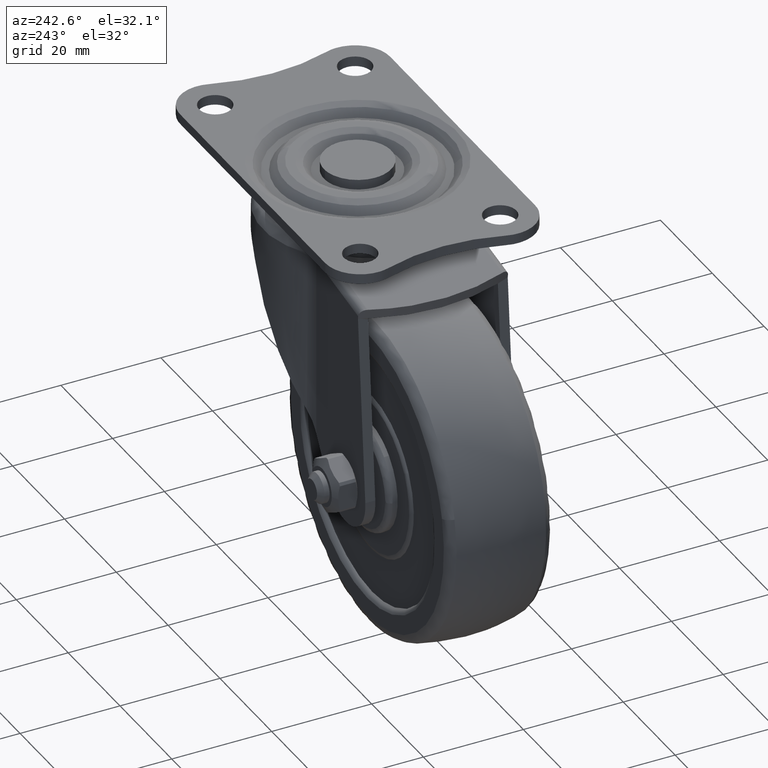
[diagram: clean part render]
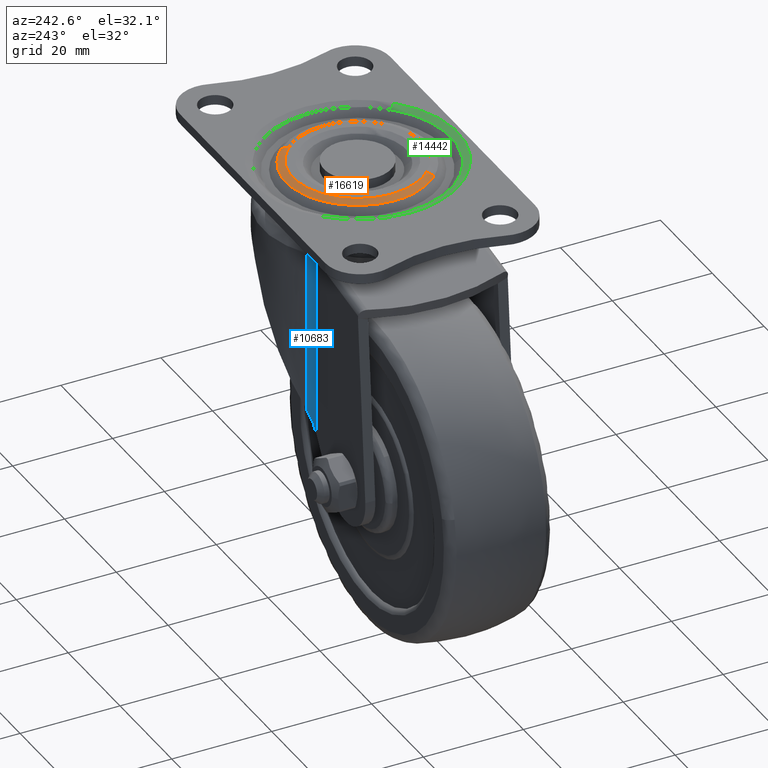
[diagram: same view with three faces highlighted in distinct colors, each labeled with its STEP entity id]
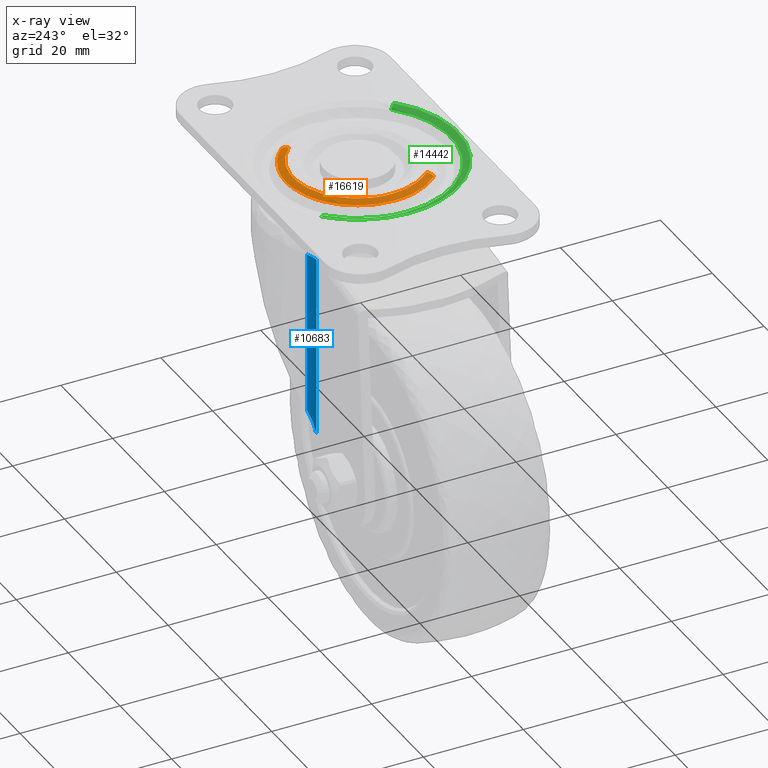
[diagram: x-ray of the same camera — body ghosted, the three highlighted faces saturated]
A machine part, auxiliary view with three faces highlighted in distinct colors.
The next image is the same camera in x-ray (body ghosted, the three faces saturated) — at least one of them is partly hidden behind the body in this view.
Their STEP definitions:

[orange] entity #16619 — the highlighted face is a freeform B-spline surface patch.
#15753=CARTESIAN_POINT('',(18.055046236144339,13.045010445499649,48.914217562826828));
#15754=VERTEX_POINT('',#15753);
#15755=CARTESIAN_POINT('',(34.326196349037403,9.944065653081688,48.914217563544227));
#15756=VERTEX_POINT('',#15755);
#15757=CARTESIAN_POINT('',(18.055046236144339,13.045010445499647,48.914217562826828));
#15758=CARTESIAN_POINT('',(20.887395647753301,14.335786437081877,48.914217562979701));
#15759=CARTESIAN_POINT('',(23.999999999430749,14.335786437007499,48.914217563126009));
#15760=CARTESIAN_POINT('',(30.096995360944430,14.335786436861811,48.914217563412606));
#15761=CARTESIAN_POINT('',(34.326196349037403,9.944065653081688,48.914217563544227));
#15769=(BOUNDED_CURVE()B_SPLINE_CURVE(2,(#15757,#15758,#15759,#15760,#15761),.UNSPECIFIED.,.F.,.U.)B_SPLINE_CURVE_WITH_KNOTS((3,2,3),(0.679570116088817,0.750000000000000,0.877844262562531),.UNSPECIFIED.)CURVE()GEOMETRIC_REPRESENTATION_ITEM()RATIONAL_B_SPLINE_CURVE((0.881463982739147,0.917486258402384,1.0,0.850221129724913,0.853629213191965))REPRESENTATION_ITEM(''));
#15770=EDGE_CURVE('',#15754,#15756,#15769,.T.);
#15835=CARTESIAN_POINT('',(9.664213562373099,1.421085E-014,48.914217562373203));
#15836=VERTEX_POINT('',#15835);
#15837=CARTESIAN_POINT('',(9.664213562373099,1.421085E-014,48.914217562373203));
#15838=CARTESIAN_POINT('',(9.664213562280754,9.221087690711356,48.914217562473105));
#15839=CARTESIAN_POINT('',(18.055046236144339,13.045010445499647,48.914217562826828));
#15847=(BOUNDED_CURVE()B_SPLINE_CURVE(2,(#15837,#15838,#15839),.UNSPECIFIED.,.F.,.U.)B_SPLINE_CURVE_WITH_KNOTS((3,3),(0.500000000000000,0.679570116088817),.UNSPECIFIED.)CURVE()GEOMETRIC_REPRESENTATION_ITEM()RATIONAL_B_SPLINE_CURVE((1.0,0.789620522784164,0.881463982739147))REPRESENTATION_ITEM(''));
#15848=EDGE_CURVE('',#15836,#15754,#15847,.T.);
#15854=CARTESIAN_POINT('',(13.673803650962601,-9.944065653081660,48.914217563544227));
#15855=VERTEX_POINT('',#15854);
#15871=CARTESIAN_POINT('',(13.673803650962601,-9.944065653081660,48.914217563544227));
#15872=CARTESIAN_POINT('',(9.664213562794854,-5.780394980980916,48.914217562958726));
#15873=CARTESIAN_POINT('',(9.664213562373099,1.421085E-014,48.914217562373203));
#15881=(BOUNDED_CURVE()B_SPLINE_CURVE(2,(#15871,#15872,#15873),.UNSPECIFIED.,.F.,.U.)B_SPLINE_CURVE_WITH_KNOTS((3,3),(0.377844262562531,0.500000000000000),.UNSPECIFIED.)CURVE()GEOMETRIC_REPRESENTATION_ITEM()RATIONAL_B_SPLINE_CURVE((0.853629213191966,0.856885651461635,1.0))REPRESENTATION_ITEM(''));
#15882=EDGE_CURVE('',#15855,#15836,#15881,.T.);
#16496=CARTESIAN_POINT('',(33.307525562815343,8.963091746105299,49.500004000000096));
#16497=VERTEX_POINT('',#16496);
#16498=CARTESIAN_POINT('',(34.326196349037403,9.944065653081688,48.914217563544227));
#16499=CARTESIAN_POINT('',(33.904249093584916,9.537732956282284,49.500003997097956));
#16500=CARTESIAN_POINT('',(33.307525562815336,8.963091746105299,49.500004000000096));
#16508=(BOUNDED_CURVE()B_SPLINE_CURVE(2,(#16498,#16499,#16500),.UNSPECIFIED.,.F.,.U.)B_SPLINE_CURVE_WITH_KNOTS((3,3),(-1.561206957256655,-0.429502472914890),.UNSPECIFIED.)CURVE()GEOMETRIC_REPRESENTATION_ITEM()RATIONAL_B_SPLINE_CURVE((0.924657668355279,0.854806298349379,0.925814031479902))REPRESENTATION_ITEM(''));
#16509=EDGE_CURVE('',#15756,#16497,#16508,.T.);
#16526=CARTESIAN_POINT('',(14.692474437184661,-8.963091746105274,49.500004000000089));
#16527=VERTEX_POINT('',#16526);
#16543=CARTESIAN_POINT('',(13.673803650962595,-9.944065653081660,48.914217563544227));
#16544=CARTESIAN_POINT('',(14.095750906415098,-9.537732956282259,49.500003997097956));
#16545=CARTESIAN_POINT('',(14.692474437184668,-8.963091746105274,49.500004000000089));
#16553=(BOUNDED_CURVE()B_SPLINE_CURVE(2,(#16543,#16544,#16545),.UNSPECIFIED.,.F.,.U.)B_SPLINE_CURVE_WITH_KNOTS((3,3),(-1.561206957256656,-0.429502472914893),.UNSPECIFIED.)CURVE()GEOMETRIC_REPRESENTATION_ITEM()RATIONAL_B_SPLINE_CURVE((0.924657668355279,0.854806298349379,0.925814031479901))REPRESENTATION_ITEM(''));
#16554=EDGE_CURVE('',#15855,#16527,#16553,.T.);
#16559=CARTESIAN_POINT('',(34.364264477490160,9.980725034297683,48.859314610720467));
#16560=CARTESIAN_POINT('',(24.383539443192490,20.344989511787851,48.859314610720467));
#16561=CARTESIAN_POINT('',(14.019274965702328,10.364264477490179,48.859314610720467));
#16562=CARTESIAN_POINT('',(3.655010488212168,0.383539443192512,48.859314610720467));
#16563=CARTESIAN_POINT('',(13.635735522509833,-9.980725034297652,48.859314610720467));
#16564=CARTESIAN_POINT('',(33.914293377981160,9.547405542370985,49.533525720297952));
#16565=CARTESIAN_POINT('',(24.366887835610196,19.461698920352138,49.533525720297952));
#16566=CARTESIAN_POINT('',(14.452594457629024,9.914293377981176,49.533525720297952));
#16567=CARTESIAN_POINT('',(4.538301079647868,0.366887835610206,49.533525720297952));
#16568=CARTESIAN_POINT('',(14.085706622018844,-9.547405542370957,49.533525720297952));
#16569=CARTESIAN_POINT('',(33.252714925742751,8.910309428628544,49.498555931297290));
#16570=CARTESIAN_POINT('',(24.342405497114218,18.163024354371295,49.498555931297297));
#16571=CARTESIAN_POINT('',(15.089690571371472,9.252714925742763,49.498555931297290));
#16572=CARTESIAN_POINT('',(5.836975645628721,0.342405497114236,49.498555931297297));
#16573=CARTESIAN_POINT('',(14.747285074257247,-8.910309428628516,49.498555931297290));
#16581=(BOUNDED_SURFACE()B_SPLINE_SURFACE(2,2,((#16559,#16564,#16569),(#16560,#16565,#16570),(#16561,#16566,#16571),(#16562,#16567,#16572),(#16563,#16568,#16573)),.UNSPECIFIED.,.F.,.F.,.U.)B_SPLINE_SURFACE_WITH_KNOTS((3,2,3),(3,3),(0.0,23.839872956006332,47.679745912012663),(0.0,1.750269507918023),.UNSPECIFIED.)GEOMETRIC_REPRESENTATION_ITEM()RATIONAL_B_SPLINE_SURFACE(((0.931987261225482,0.847418942719457,0.933259149943022),(0.659014512392016,0.599215680902862,0.659913873529104),(0.931987261225482,0.847418942719457,0.933259149943022),(0.659014512392016,0.599215680902862,0.659913873529104),(0.931987261225482,0.847418942719457,0.933259149943022)))REPRESENTATION_ITEM('')SURFACE());
#16582=ORIENTED_EDGE('',*,*,#15882,.F.);
#16583=ORIENTED_EDGE('',*,*,#16554,.T.);
#16584=CARTESIAN_POINT('',(11.078427124746201,1.421085E-014,49.500004000000096));
#16585=VERTEX_POINT('',#16584);
#16586=CARTESIAN_POINT('',(11.078427124746201,1.421085E-014,49.500004000000096));
#16587=CARTESIAN_POINT('',(11.078427122222816,-5.210163764628930,49.500004000000096));
#16588=CARTESIAN_POINT('',(14.692474437184663,-8.963091746105274,49.500004000000096));
#16596=(BOUNDED_CURVE()B_SPLINE_CURVE(2,(#16586,#16587,#16588),.UNSPECIFIED.,.F.,.U.)B_SPLINE_CURVE_WITH_KNOTS((3,3),(0.500000000000000,0.622155737437753),.UNSPECIFIED.)CURVE()GEOMETRIC_REPRESENTATION_ITEM()RATIONAL_B_SPLINE_CURVE((1.0,0.856885651461303,0.853629213191951))REPRESENTATION_ITEM(''));
#16597=EDGE_CURVE('',#16585,#16527,#16596,.T.);
#16598=ORIENTED_EDGE('',*,*,#16597,.F.);
#16599=CARTESIAN_POINT('',(33.307525562815343,8.963091746105299,49.500004000000104));
#16600=CARTESIAN_POINT('',(29.495531779513733,12.921572879697095,49.500004000000096));
#16601=CARTESIAN_POINT('',(24.000000003540841,12.921572878663630,49.500004000000096));
#16602=CARTESIAN_POINT('',(11.078427125763662,12.921572876233624,49.500004000000096));
#16603=CARTESIAN_POINT('',(11.078427124746201,1.421085E-014,49.500004000000096));
#16611=(BOUNDED_CURVE()B_SPLINE_CURVE(2,(#16599,#16600,#16601,#16602,#16603),.UNSPECIFIED.,.F.,.U.)B_SPLINE_CURVE_WITH_KNOTS((3,2,3),(0.122155737437753,0.250000000000000,0.500000000000000),.UNSPECIFIED.)CURVE()GEOMETRIC_REPRESENTATION_ITEM()RATIONAL_B_SPLINE_CURVE((0.853629213191950,0.850221129725245,1.0,0.707106781186548,1.0))REPRESENTATION_ITEM(''));
#16612=EDGE_CURVE('',#16497,#16585,#16611,.T.);
#16613=ORIENTED_EDGE('',*,*,#16612,.F.);
#16614=ORIENTED_EDGE('',*,*,#16509,.F.);
#16615=ORIENTED_EDGE('',*,*,#15770,.F.);
#16616=ORIENTED_EDGE('',*,*,#15848,.F.);
#16617=EDGE_LOOP('',(#16582,#16583,#16598,#16613,#16614,#16615,#16616));
#16618=FACE_OUTER_BOUND('',#16617,.T.);
#16619=ADVANCED_FACE('',(#16618),#16581,.T.);

[blue] entity #10683 — the highlighted face is a freeform B-spline surface patch.
#3089=CARTESIAN_POINT('',(11.023097783363021,14.989471000000000,3.622461012426025));
#3090=VERTEX_POINT('',#3089);
#3096=CARTESIAN_POINT('',(13.279950342778100,15.686954304347850,7.457063684333960));
#3097=VERTEX_POINT('',#3096);
#3098=CARTESIAN_POINT('',(11.023097783363021,14.989471000000000,3.622461012426025));
#3099=CARTESIAN_POINT('',(11.405529172876550,14.989368678691120,4.272247557821908));
#3100=CARTESIAN_POINT('',(11.907649448680919,15.060388676797510,5.125396667269117));
#3101=CARTESIAN_POINT('',(12.425737687366709,15.240706015390780,6.005676832697136));
#3102=CARTESIAN_POINT('',(12.577822377989101,15.303455823967580,6.264082885225468));
#3103=CARTESIAN_POINT('',(12.624483416814281,15.324009172273829,6.343364335582775));
#3104=CARTESIAN_POINT('',(12.659532090277480,15.338957570251869,6.402915295767627));
#3105=CARTESIAN_POINT('',(12.694408536709521,15.355395536529000,6.462173626187605));
#3106=CARTESIAN_POINT('',(12.729376361932310,15.371058338034450,6.521587217682850));
#3107=CARTESIAN_POINT('',(12.764155370316651,15.388278194797120,6.580679991785678));
#3108=CARTESIAN_POINT('',(12.787403309892630,15.399259470937579,6.620180406131580));
#3109=CARTESIAN_POINT('',(12.961248104485531,15.485417474306351,6.915558901754239));
#3110=CARTESIAN_POINT('',(13.121864957986659,15.578922451342990,7.188461893587421));
#3111=CARTESIAN_POINT('',(13.279950342778100,15.686954304347850,7.457063684333960));
#3112=B_SPLINE_CURVE_WITH_KNOTS('',3,(#3098,#3099,#3100,#3101,#3102,#3103,#3104,#3105,#3106,#3107,#3108,#3109,#3110,#3111),.UNSPECIFIED.,.F.,.U.,(4,1,1,1,1,1,1,1,1,2,4),(0.000015671284419,2.262078486790378,2.969015497496498,3.110407505569551,3.181103201521903,3.251798897474254,3.322493830047723,3.393188762621190,3.463882453114086,3.534576143606983,4.524141550215302),.UNSPECIFIED.);
#3113=EDGE_CURVE('',#3090,#3097,#3112,.T.);
#3756=CARTESIAN_POINT('',(13.279950342778060,15.686954304347800,40.068369961891797));
#3757=VERTEX_POINT('',#3756);
#3758=CARTESIAN_POINT('',(13.279950342778120,15.686954304347831,7.457063684333964));
#3759=CARTESIAN_POINT('',(13.279950342778120,15.686954304347831,18.327499110186640));
#3760=CARTESIAN_POINT('',(13.279950342778120,15.686954304347831,29.197934536039330));
#3761=CARTESIAN_POINT('',(13.279950342778120,15.686954304347831,40.068369961892003));
#3762=QUASI_UNIFORM_CURVE('',3,(#3758,#3759,#3760,#3761),.UNSPECIFIED.,.F.,.U.);
#3763=EDGE_CURVE('',#3097,#3757,#3762,.T.);
#3809=CARTESIAN_POINT('',(11.027635331871281,14.989471000000000,40.069170054098898));
#3810=VERTEX_POINT('',#3809);
#3816=CARTESIAN_POINT('',(11.027635331871281,14.989471000000000,40.069170054098898));
#3817=CARTESIAN_POINT('',(11.023097783362990,14.989471000000000,3.622461012426026));
#3818=QUASI_UNIFORM_CURVE('',1,(#3816,#3817),.UNSPECIFIED.,.F.,.U.);
#3819=EDGE_CURVE('',#3810,#3090,#3818,.T.);
#10645=CARTESIAN_POINT('',(11.023097783362999,14.989471000000000,40.068369961891797));
#10646=CARTESIAN_POINT('',(12.259303137475415,14.989471000000023,40.068369961891811));
#10647=CARTESIAN_POINT('',(13.279950342778120,15.686954304347850,40.068369961891797));
#10648=CARTESIAN_POINT('',(11.023097783362999,14.989471000000000,27.846841827504260));
#10649=CARTESIAN_POINT('',(12.259303137475415,14.989471000000023,27.846841827504246));
#10650=CARTESIAN_POINT('',(13.279950342778120,15.686954304347850,27.846841827504260));
#10651=CARTESIAN_POINT('',(11.023097783362999,14.989471000000000,15.625313693116659));
#10652=CARTESIAN_POINT('',(12.259303137475415,14.989471000000023,15.625313693116659));
#10653=CARTESIAN_POINT('',(13.279950342778120,15.686954304347850,15.625313693116659));
#10654=CARTESIAN_POINT('',(11.023097783362999,14.989471000000000,3.403785558729107));
#10655=CARTESIAN_POINT('',(12.259303137475415,14.989471000000023,3.403785558729106));
#10656=CARTESIAN_POINT('',(13.279950342778120,15.686954304347850,3.403785558729107));
#10664=(BOUNDED_SURFACE()B_SPLINE_SURFACE(2,3,((#10645,#10648,#10651,#10654),(#10646,#10649,#10652,#10655),(#10647,#10650,#10653,#10656)),.UNSPECIFIED.,.F.,.F.,.U.)B_SPLINE_SURFACE_WITH_KNOTS((3,3),(4,4),(0.0,2.416035609857936),(0.0,36.664584403162721),.UNSPECIFIED.)GEOMETRIC_REPRESENTATION_ITEM()RATIONAL_B_SPLINE_SURFACE(((1.0,1.0,1.0,1.0),(0.955413306876412,0.955413306876412,0.955413306876412,0.955413306876412),(1.0,1.0,1.0,1.0)))REPRESENTATION_ITEM('')SURFACE());
#10665=CARTESIAN_POINT('',(11.027635331871275,14.989471000000000,40.069170054098898));
#10666=CARTESIAN_POINT('',(12.261354856046612,14.990871802374020,40.068770008093900));
#10667=CARTESIAN_POINT('',(13.279950342778060,15.686954304347800,40.068369961891797));
#10675=(BOUNDED_CURVE()B_SPLINE_CURVE(2,(#10665,#10666,#10667),.UNSPECIFIED.,.F.,.U.)B_SPLINE_CURVE_WITH_KNOTS((3,3),(0.0,0.998079244527832),.UNSPECIFIED.)CURVE()GEOMETRIC_REPRESENTATION_ITEM()RATIONAL_B_SPLINE_CURVE((0.999829048717857,0.955498946997727,1.0))REPRESENTATION_ITEM(''));
#10676=EDGE_CURVE('',#3810,#3757,#10675,.T.);
#10677=ORIENTED_EDGE('',*,*,#10676,.T.);
#10678=ORIENTED_EDGE('',*,*,#3763,.F.);
#10679=ORIENTED_EDGE('',*,*,#3113,.F.);
#10680=ORIENTED_EDGE('',*,*,#3819,.F.);
#10681=EDGE_LOOP('',(#10677,#10678,#10679,#10680));
#10682=FACE_OUTER_BOUND('',#10681,.T.);
#10683=ADVANCED_FACE('',(#10682),#10664,.T.);

[green] entity #14442 — the highlighted face is a freeform B-spline surface patch.
#13934=CARTESIAN_POINT('',(3.921572875253802,1.421085E-014,49.500004000000096));
#13935=VERTEX_POINT('',#13934);
#13936=CARTESIAN_POINT('',(10.072532652919721,14.462672259828960,49.500004000000089));
#13937=VERTEX_POINT('',#13936);
#13938=CARTESIAN_POINT('',(3.921572875253802,1.421085E-014,49.500004000000096));
#13939=CARTESIAN_POINT('',(3.921572877020295,8.539334591529752,49.500004000000096));
#13940=CARTESIAN_POINT('',(10.072532652919723,14.462672259828956,49.500004000000089));
#13948=(BOUNDED_CURVE()B_SPLINE_CURVE(2,(#13938,#13939,#13940),.UNSPECIFIED.,.F.,.U.)B_SPLINE_CURVE_WITH_KNOTS((3,3),(0.500000000000000,0.627844262562522),.UNSPECIFIED.)CURVE()GEOMETRIC_REPRESENTATION_ITEM()RATIONAL_B_SPLINE_CURVE((1.0,0.850221129724923,0.853629213191965))REPRESENTATION_ITEM(''));
#13949=EDGE_CURVE('',#13935,#13937,#13948,.T.);
#13968=CARTESIAN_POINT('',(37.927467347080281,-14.462672259828940,49.500004000000096));
#13969=VERTEX_POINT('',#13968);
#13983=CARTESIAN_POINT('',(37.927467347080281,-14.462672259828944,49.500004000000096));
#13984=CARTESIAN_POINT('',(32.095910178677670,-20.078427121392014,49.500004000000096));
#13985=CARTESIAN_POINT('',(23.999999997482220,-20.078427122131650,49.500004000000096));
#13986=CARTESIAN_POINT('',(3.921572874502515,-20.078427123966033,49.500004000000096));
#13987=CARTESIAN_POINT('',(3.921572875253802,1.421085E-014,49.500004000000096));
#13995=(BOUNDED_CURVE()B_SPLINE_CURVE(2,(#13983,#13984,#13985,#13986,#13987),.UNSPECIFIED.,.F.,.U.)B_SPLINE_CURVE_WITH_KNOTS((3,2,3),(0.127844262562522,0.250000000000000,0.500000000000000),.UNSPECIFIED.)CURVE()GEOMETRIC_REPRESENTATION_ITEM()RATIONAL_B_SPLINE_CURVE((0.853629213191965,0.856885651461625,1.0,0.707106781186548,1.0))REPRESENTATION_ITEM(''));
#13996=EDGE_CURVE('',#13969,#13935,#13995,.T.);
#14288=CARTESIAN_POINT('',(36.946493439110512,-13.444001472622450,48.914217564059172));
#14289=VERTEX_POINT('',#14288);
#14305=CARTESIAN_POINT('',(37.927467347080281,-14.462672259828942,49.500004000000096));
#14306=CARTESIAN_POINT('',(37.352826136410066,-13.865948728570766,49.500003997890381));
#14307=CARTESIAN_POINT('',(36.946493439110519,-13.444001472622455,48.914217564059172));
#14315=(BOUNDED_CURVE()B_SPLINE_CURVE(2,(#14305,#14306,#14307),.UNSPECIFIED.,.F.,.U.)B_SPLINE_CURVE_WITH_KNOTS((3,3),(-1.556175675585118,-0.434617039612565),.UNSPECIFIED.)CURVE()GEOMETRIC_REPRESENTATION_ITEM()RATIONAL_B_SPLINE_CURVE((0.922813124319192,0.853101096852809,0.923967181425977))REPRESENTATION_ITEM(''));
#14316=EDGE_CURVE('',#13969,#14289,#14315,.T.);
#14320=CARTESIAN_POINT('',(11.053506560889490,13.444001472622480,48.914217564059172));
#14321=VERTEX_POINT('',#14320);
#14322=CARTESIAN_POINT('',(10.072532652919723,14.462672259828958,49.500004000000089));
#14323=CARTESIAN_POINT('',(10.647173863589925,13.865948728570787,49.500003997890374));
#14324=CARTESIAN_POINT('',(11.053506560889488,13.444001472622476,48.914217564059172));
#14332=(BOUNDED_CURVE()B_SPLINE_CURVE(2,(#14322,#14323,#14324),.UNSPECIFIED.,.F.,.U.)B_SPLINE_CURVE_WITH_KNOTS((3,3),(-1.556175675585114,-0.434617039612564),.UNSPECIFIED.)CURVE()GEOMETRIC_REPRESENTATION_ITEM()RATIONAL_B_SPLINE_CURVE((0.922813124319191,0.853101096852809,0.923967181425977))REPRESENTATION_ITEM(''));
#14333=EDGE_CURVE('',#13937,#14321,#14332,.T.);
#14368=CARTESIAN_POINT('',(10.019681321768211,14.517554562706806,49.498552140626799));
#14369=CARTESIAN_POINT('',(-4.497873240938578,0.537235884475016,49.498552140626792));
#14370=CARTESIAN_POINT('',(9.482445437293208,-13.980318678231775,49.498552140626799));
#14371=CARTESIAN_POINT('',(23.462764115524990,-28.497873240938571,49.498552140626792));
#14372=CARTESIAN_POINT('',(37.980318678231782,-14.517554562706785,49.498552140626799));
#14373=CARTESIAN_POINT('',(10.656776249637829,13.855977341911954,49.533567655297659));
#14374=CARTESIAN_POINT('',(-3.199201092274110,0.512753591549783,49.533567655297652));
#14375=CARTESIAN_POINT('',(10.144022658088062,-13.343223750362155,49.533567655297659));
#14376=CARTESIAN_POINT('',(23.487246408450222,-27.199201092274105,49.533567655297652));
#14377=CARTESIAN_POINT('',(37.343223750362164,-13.855977341911931,49.533567655297659));
#14378=CARTESIAN_POINT('',(11.090119026032005,13.405982063159621,48.859387605379908));
#14379=CARTESIAN_POINT('',(-2.315863037127605,0.496101089191631,48.859387605379922));
#14380=CARTESIAN_POINT('',(10.594017936840391,-12.909880973967981,48.859387605379908));
#14381=CARTESIAN_POINT('',(23.503898910808381,-26.315863037127592,48.859387605379922));
#14382=CARTESIAN_POINT('',(36.909880973967987,-13.405982063159602,48.859387605379908));
#14390=(BOUNDED_SURFACE()B_SPLINE_SURFACE(2,2,((#14368,#14373,#14378),(#14369,#14374,#14379),(#14370,#14375,#14380),(#14371,#14376,#14381),(#14372,#14377,#14382)),.UNSPECIFIED.,.F.,.F.,.U.)B_SPLINE_SURFACE_WITH_KNOTS((3,2,3),(3,3),(0.0,33.393267525978032,66.786535051956051),(0.0,1.750269564119266),.UNSPECIFIED.)GEOMETRIC_REPRESENTATION_ITEM()RATIONAL_B_SPLINE_SURFACE(((0.930128103351805,0.845728475102868,0.931397445818924),(0.657699889252243,0.598020339787796,0.658597449918391),(0.930128103351805,0.845728475102868,0.931397445818924),(0.657699889252243,0.598020339787796,0.658597449918391),(0.930128103351805,0.845728475102868,0.931397445818924)))REPRESENTATION_ITEM('')SURFACE());
#14391=CARTESIAN_POINT('',(17.159542833364011,-17.365512191452961,48.914217563114427));
#14392=VERTEX_POINT('',#14391);
#14393=CARTESIAN_POINT('',(17.159542833364004,-17.365512191452968,48.914217563114441));
#14394=CARTESIAN_POINT('',(20.456488337350173,-18.664213563223946,48.914217563306977));
#14395=CARTESIAN_POINT('',(24.000000000801791,-18.664213563318871,48.914217563488783));
#14396=CARTESIAN_POINT('',(31.525678963755173,-18.664213563520470,48.914217563874935));
#14397=CARTESIAN_POINT('',(36.946493439110512,-13.444001472622451,48.914217564059186));
#14405=(BOUNDED_CURVE()B_SPLINE_CURVE(2,(#14393,#14394,#14395,#14396,#14397),.UNSPECIFIED.,.F.,.U.)B_SPLINE_CURVE_WITH_KNOTS((3,2,3),(0.375539285771892,0.500000000000000,0.744311474874820),.UNSPECIFIED.)CURVE()GEOMETRIC_REPRESENTATION_ITEM()RATIONAL_B_SPLINE_CURVE((0.890481630691207,0.927092601587817,1.0,0.856885651461704,0.853629213191969))REPRESENTATION_ITEM(''));
#14406=EDGE_CURVE('',#14392,#14289,#14405,.T.);
#14407=ORIENTED_EDGE('',*,*,#14406,.F.);
#14408=CARTESIAN_POINT('',(5.335786437626899,1.421085E-014,48.914217562373203));
#14409=VERTEX_POINT('',#14408);
#14410=CARTESIAN_POINT('',(5.335786437626899,1.421085E-014,48.914217562373203));
#14411=CARTESIAN_POINT('',(5.335786437772955,-12.708010685183615,48.914217562554136));
#14412=CARTESIAN_POINT('',(17.159542833364004,-17.365512191452968,48.914217563114441));
#14420=(BOUNDED_CURVE()B_SPLINE_CURVE(2,(#14410,#14411,#14412),.UNSPECIFIED.,.F.,.U.)B_SPLINE_CURVE_WITH_KNOTS((3,3),(0.0,0.375539285771892),.UNSPECIFIED.)CURVE()GEOMETRIC_REPRESENTATION_ITEM()RATIONAL_B_SPLINE_CURVE((1.0,0.780014179598731,0.890481630691207))REPRESENTATION_ITEM(''));
#14421=EDGE_CURVE('',#14409,#14392,#14420,.T.);
#14422=ORIENTED_EDGE('',*,*,#14421,.F.);
#14423=CARTESIAN_POINT('',(11.053506560889488,13.444001472622473,48.914217564059157));
#14424=CARTESIAN_POINT('',(5.335786437042163,7.937871007184975,48.914217563216170));
#14425=CARTESIAN_POINT('',(5.335786437626899,1.421085E-014,48.914217562373203));
#14433=(BOUNDED_CURVE()B_SPLINE_CURVE(2,(#14423,#14424,#14425),.UNSPECIFIED.,.F.,.U.)B_SPLINE_CURVE_WITH_KNOTS((3,3),(0.744311474874820,1.0),.UNSPECIFIED.)CURVE()GEOMETRIC_REPRESENTATION_ITEM()RATIONAL_B_SPLINE_CURVE((0.853629213191969,0.850221129724844,1.0))REPRESENTATION_ITEM(''));
#14434=EDGE_CURVE('',#14321,#14409,#14433,.T.);
#14435=ORIENTED_EDGE('',*,*,#14434,.F.);
#14436=ORIENTED_EDGE('',*,*,#14333,.F.);
#14437=ORIENTED_EDGE('',*,*,#13949,.F.);
#14438=ORIENTED_EDGE('',*,*,#13996,.F.);
#14439=ORIENTED_EDGE('',*,*,#14316,.T.);
#14440=EDGE_LOOP('',(#14407,#14422,#14435,#14436,#14437,#14438,#14439));
#14441=FACE_OUTER_BOUND('',#14440,.T.);
#14442=ADVANCED_FACE('',(#14441),#14390,.T.);